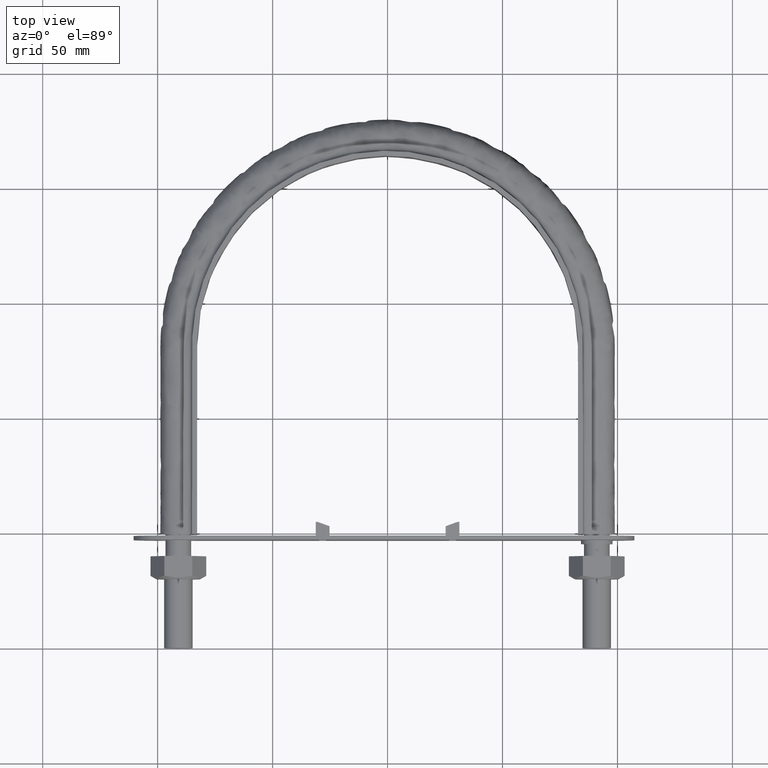
[diagram: clean part render]
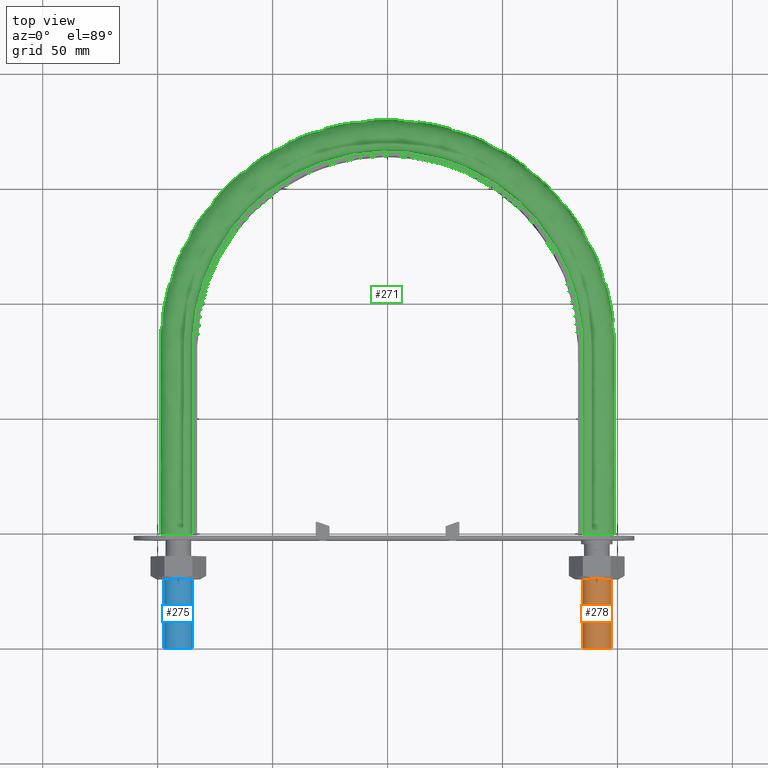
[diagram: same view with three faces highlighted in distinct colors, each labeled with its STEP entity id]
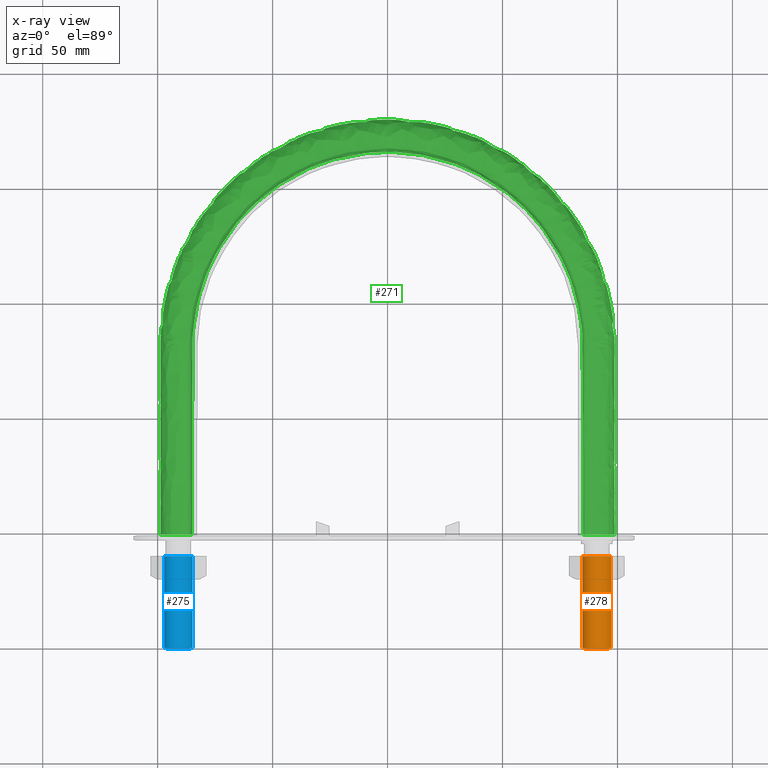
[diagram: x-ray of the same camera — body ghosted, the three highlighted faces saturated]
A machine part, top view with three faces highlighted in distinct colors.
The next image is the same camera in x-ray (body ghosted, the three faces saturated) — at least one of them is partly hidden behind the body in this view.
Their STEP definitions:

[orange] entity #278 — the highlighted cylindrical surface (bore or boss wall) has radius 6.25 mm, axis along (-0, -1, 0).
#278 = ADVANCED_FACE( '', ( #372, #373 ), #374, .T. );
#372 = FACE_OUTER_BOUND( '', #1454, .T. );
#373 = FACE_OUTER_BOUND( '', #1455, .T. );
#374 = CYLINDRICAL_SURFACE( '', #1456, 6.25000000000001 );
#1454 = EDGE_LOOP( '', ( #1711 ) );
#1455 = EDGE_LOOP( '', ( #1712 ) );
#1456 = AXIS2_PLACEMENT_3D( '', #1713, #1714, #1715 );
#1711 = ORIENTED_EDGE( '', *, *, #2201, .F. );
#1712 = ORIENTED_EDGE( '', *, *, #2202, .T. );
#1713 = CARTESIAN_POINT( '', ( 91.0000000000000, 40.0000000000000, -1.22460635382238E-014 ) );
#1714 = DIRECTION( '', ( -2.44921270764475E-016, -1.00000000000000, 3.06151588455594E-016 ) );
#1715 = DIRECTION( '', ( 1.00000000000000, -2.44921270764475E-016, 0.000000000000000 ) );
#2201 = EDGE_CURVE( '', #2395, #2395, #2396, .T. );
#2202 = EDGE_CURVE( '', #2397, #2397, #2398, .T. );
#2395 = VERTEX_POINT( '', #2879 );
#2396 = CIRCLE( '', #2880, 6.25000000000001 );
#2397 = VERTEX_POINT( '', #2881 );
#2398 = CIRCLE( '', #2882, 6.25000000000001 );
#2879 = CARTESIAN_POINT( '', ( 91.0000000000000, -1.57912352356619E-014, -6.25000000000001 ) );
#2880 = AXIS2_PLACEMENT_3D( '', #3345, #3346, #3347 );
#2881 = CARTESIAN_POINT( '', ( 91.0000000000000, 40.0000000000000, -6.25000000000002 ) );
#2882 = AXIS2_PLACEMENT_3D( '', #3348, #3349, #3350 );
#3345 = CARTESIAN_POINT( '', ( 91.0000000000000, -1.38777878078145E-014, -3.69778549322349E-029 ) );
#3346 = DIRECTION( '', ( -2.44921270764475E-016, -1.00000000000000, 3.06151588455594E-016 ) );
#3347 = DIRECTION( '', ( 0.000000000000000, -3.06151588455594E-016, -1.00000000000000 ) );
#3348 = CARTESIAN_POINT( '', ( 91.0000000000000, 40.0000000000000, -1.22460635382238E-014 ) );
#3349 = DIRECTION( '', ( -2.44921270764475E-016, -1.00000000000000, 3.06151588455594E-016 ) );
#3350 = DIRECTION( '', ( 0.000000000000000, -3.06151588455594E-016, -1.00000000000000 ) );

[blue] entity #275 — the highlighted cylindrical surface (bore or boss wall) has radius 6.25 mm, axis along (-0, -1, 0).
#275 = ADVANCED_FACE( '', ( #363, #364 ), #365, .T. );
#363 = FACE_OUTER_BOUND( '', #1259, .T. );
#364 = FACE_OUTER_BOUND( '', #1260, .T. );
#365 = CYLINDRICAL_SURFACE( '', #1261, 6.25000000000001 );
#1259 = EDGE_LOOP( '', ( #1678 ) );
#1260 = EDGE_LOOP( '', ( #1679 ) );
#1261 = AXIS2_PLACEMENT_3D( '', #1680, #1681, #1682 );
#1678 = ORIENTED_EDGE( '', *, *, #2190, .F. );
#1679 = ORIENTED_EDGE( '', *, *, #2191, .T. );
#1680 = CARTESIAN_POINT( '', ( -91.0000000000000, 40.0000000000000, -1.22460635382238E-014 ) );
#1681 = DIRECTION( '', ( -2.44921270764475E-016, -1.00000000000000, 3.06151588455594E-016 ) );
#1682 = DIRECTION( '', ( 1.00000000000000, -2.44921270764475E-016, 0.000000000000000 ) );
#2190 = EDGE_CURVE( '', #2373, #2373, #2374, .T. );
#2191 = EDGE_CURVE( '', #2375, #2375, #2376, .T. );
#2373 = VERTEX_POINT( '', #2833 );
#2374 = CIRCLE( '', #2834, 6.25000000000001 );
#2375 = VERTEX_POINT( '', #2835 );
#2376 = CIRCLE( '', #2836, 6.25000000000001 );
#2833 = CARTESIAN_POINT( '', ( -91.0000000000000, 1.19643403799670E-014, -6.25000000000001 ) );
#2834 = AXIS2_PLACEMENT_3D( '', #3336, #3337, #3338 );
#2835 = CARTESIAN_POINT( '', ( -91.0000000000000, 40.0000000000000, -6.25000000000002 ) );
#2836 = AXIS2_PLACEMENT_3D( '', #3339, #3340, #3341 );
#3336 = CARTESIAN_POINT( '', ( -91.0000000000000, 1.38777878078145E-014, -4.62223186652937E-029 ) );
#3337 = DIRECTION( '', ( -2.44921270764476E-016, -1.00000000000000, 3.06151588455594E-016 ) );
#3338 = DIRECTION( '', ( 0.000000000000000, -3.06151588455594E-016, -1.00000000000000 ) );
#3339 = CARTESIAN_POINT( '', ( -91.0000000000000, 40.0000000000000, -1.22460635382238E-014 ) );
#3340 = DIRECTION( '', ( -2.44921270764475E-016, -1.00000000000000, 3.06151588455594E-016 ) );
#3341 = DIRECTION( '', ( 0.000000000000000, -3.06151588455594E-016, -1.00000000000000 ) );

[green] entity #271 — the highlighted face is a freeform B-spline surface patch.
#271 = ADVANCED_FACE( '', ( #353 ), #354, .F. );
#353 = FACE_OUTER_BOUND( '', #537, .T. );
#354 = B_SPLINE_SURFACE_WITH_KNOTS( '', 3, 3, ( ( #538, #539, #540, #541, #542, #543, #544, #545, #546, #547, #548, #549, #550, #551, #552, #553, #554 ), ( #555, #556, #557, #558, #559, #560, #561, #562, #563, #564, #565, #566, #567, #568, #569, #570, #571 ), ( #572, #573, #574, #575, #576, #577, #578, #579, #580, #581, #582, #583, #584, #585, #586, #587, #588 ), ( #589, #590, #591, #592, #593, #594, #595, #596, #597, #598, #599, #600, #601, #602, #603, #604, #605 ), ( #606, #607, #608, #609, #610, #611, #612, #613, #614, #615, #616, #617, #618, #619, #620, #621, #622 ), ( #623, #624, #625, #626, #627, #628, #629, #630, #631, #632, #633, #634, #635, #636, #637, #638, #639 ), ( #640, #641, #642, #643, #644, #645, #646, #647, #648, #649, #650, #651, #652, #653, #654, #655, #656 ), ( #657, #658, #659, #660, #661, #662, #663, #664, #665, #666, #667, #668, #669, #670, #671, #672, #673 ), ( #674, #675, #676, #677, #678, #679, #680, #681, #682, #683, #684, #685, #686, #687, #688, #689, #690 ), ( #691, #692, #693, #694, #695, #696, #697, #698, #699, #700, #701, #702, #703, #704, #705, #706, #707 ), ( #708, #709, #710, #711, #712, #713, #714, #715, #716, #717, #718, #719, #720, #721, #722, #723, #724 ), ( #725, #726, #727, #728, #729, #730, #731, #732, #733, #734, #735, #736, #737, #738, #739, #740, #741 ), ( #742, #743, #744, #745, #746, #747, #748, #749, #750, #751, #752, #753, #754, #755, #756, #757, #758 ), ( #759, #760, #761, #762, #763, #764, #765, #766, #767, #768, #769, #770, #771, #772, #773, #774, #775 ), ( #776, #777, #778, #779, #780, #781, #782, #783, #784, #785, #786, #787, #788, #789, #790, #791, #792 ), ( #793, #794, #795, #796, #797, #798, #799, #800, #801, #802, #803, #804, #805, #806, #807, #808, #809 ), ( #810, #811, #812, #813, #814, #815, #816, #817, #818, #819, #820, #821, #822, #823, #824, #825, #826 ), ( #827, #828, #829, #830, #831, #832, #833, #834, #835, #836, #837, #838, #839, #840, #841, #842, #843 ), ( #844, #845, #846, #847, #848, #849, #850, #851, #852, #853, #854, #855, #856, #857, #858, #859, #860 ), ( #861, #862, #863, #864, #865, #866, #867, #868, #869, #870, #871, #872, #873, #874, #875, #876, #877 ), ( #878, #879, #880, #881, #882, #883, #884, #885, #886, #887, #888, #889, #890, #891, #892, #893, #894 ), ( #895, #896, #897, #898, #899, #900, #901, #902, #903, #904, #905, #906, #907, #908, #909, #910, #911 ), ( #912, #913, #914, #915, #916, #917, #918, #919, #920, #921, #922, #923, #924, #925, #926, #927, #928 ), ( #929, #930, #931, #932, #933, #934, #935, #936, #937, #938, #939, #940, #941, #942, #943, #944, #945 ), ( #946, #947, #948, #949, #950, #951, #952, #953, #954, #955, #956, #957, #958, #959, #960, #961, #962 ), ( #963, #964, #965, #966, #967, #968, #969, #970, #971, #972, #973, #974, #975, #976, #977, #978, #979 ), ( #980, #981, #982, #983, #984, #985, #986, #987, #988, #989, #990, #991, #992, #993, #994, #995, #996 ), ( #997, #998, #999, #1000, #1001, #1002, #1003, #1004, #1005, #1006, #1007, #1008, #1009, #1010, #1011, #1012, #1013 ), ( #1014, #1015, #1016, #1017, #1018, #1019, #1020, #1021, #1022, #1023, #1024, #1025, #1026, #1027, #1028, #1029, #1030 ), ( #1031, #1032, #1033, #1034, #1035, #1036, #1037, #1038, #1039, #1040, #1041, #1042, #1043, #1044, #1045, #1046, #1047 ), ( #1048, #1049, #1050, #1051, #1052, #1053, #1054, #1055, #1056, #1057, #1058, #1059, #1060, #1061, #1062, #1063, #1064 ) ), .UNSPECIFIED., .F., .F., .F., ( 4, 3, 1, 1, 1, 3, 3, 1, 1, 1, 3, 3, 1, 1, 1, 3, 4 ), ( 4, 3, 1, 1, 1, 1, 1, 1, 1, 3, 4 ), ( 0.105263157894737, 0.157894736842105, 0.210526315789474, 0.263157894736842, 0.315789473684211, 0.368421052631579, 0.421052631578947, 0.473684210526316, 0.526315789473684, 0.578947368421053, 0.631578947368421, 0.684210526315789, 0.736842105263158, 0.789473684210526, 0.842105263157895, 0.894736842105263, 0.947368421052632 ), ( 0.000000000000000, 1.00000000000000, 2.00000000000000, 3.00000000000000, 4.00000000000000, 5.00000000000000, 6.00000000000000, 7.00000000000000, 8.00000000000000, 9.00000000000000, 10.0000000000000 ), .UNSPECIFIED. );
#537 = EDGE_LOOP( '', ( #1653, #1654, #1655, #1656 ) );
#538 = CARTESIAN_POINT( '', ( 85.0500000000000, 49.5000000000000, -15.0000000000000 ) );
#539 = CARTESIAN_POINT( '', ( 85.0500000000000, 76.7166666666667, -15.0000000000000 ) );
#540 = CARTESIAN_POINT( '', ( 85.0500000000000, 103.933333333333, -15.0000000000000 ) );
#541 = CARTESIAN_POINT( '', ( 85.0500000000000, 131.150000000000, -15.0000000000000 ) );
#542 = CARTESIAN_POINT( '', ( 85.0500000000000, 142.271250144316, -15.0000000000000 ) );
#543 = CARTESIAN_POINT( '', ( 80.6216056780530, 164.549331025117, -15.0000000000000 ) );
#544 = CARTESIAN_POINT( '', ( 61.7051055673243, 192.853821731524, -15.0000000000000 ) );
#545 = CARTESIAN_POINT( '', ( 33.3945624921453, 211.771972488282, -15.0000000000000 ) );
#546 = CARTESIAN_POINT( '', ( 5.79721414685099E-014, 218.414013755859, -15.0000000000000 ) );
#547 = CARTESIAN_POINT( '', ( -33.3945624921452, 211.771972488282, -15.0000000000000 ) );
#548 = CARTESIAN_POINT( '', ( -61.7051055673243, 192.853821731524, -15.0000000000000 ) );
#549 = CARTESIAN_POINT( '', ( -80.6216056780529, 164.549331025117, -15.0000000000000 ) );
#550 = CARTESIAN_POINT( '', ( -85.0500000000000, 142.271250144316, -15.0000000000000 ) );
#551 = CARTESIAN_POINT( '', ( -85.0500000000000, 131.150000000000, -15.0000000000000 ) );
#552 = CARTESIAN_POINT( '', ( -85.0499999999999, 103.933333333333, -15.0000000000000 ) );
#553 = CARTESIAN_POINT( '', ( -85.0499999999999, 76.7166666666667, -15.0000000000000 ) );
#554 = CARTESIAN_POINT( '', ( -85.0500000000000, 49.5000000000001, -15.0000000000000 ) );
#555 = CARTESIAN_POINT( '', ( 85.0500000000000, 49.5000000000000, -13.2666666666667 ) );
#556 = CARTESIAN_POINT( '', ( 85.0500000000000, 76.7166666666667, -13.2666666666667 ) );
#557 = CARTESIAN_POINT( '', ( 85.0500000000000, 103.933333333333, -13.2666666666667 ) );
#558 = CARTESIAN_POINT( '', ( 85.0500000000000, 131.150000000000, -13.2666666666667 ) );
#559 = CARTESIAN_POINT( '', ( 85.0500000000000, 142.271250144316, -13.2666666666667 ) );
#560 = CARTESIAN_POINT( '', ( 80.6216056780530, 164.549331025117, -13.2666666666667 ) );
#561 = CARTESIAN_POINT( '', ( 61.7051055673243, 192.853821731524, -13.2666666666667 ) );
#562 = CARTESIAN_POINT( '', ( 33.3945624921453, 211.771972488282, -13.2666666666667 ) );
#563 = CARTESIAN_POINT( '', ( 5.79721414685099E-014, 218.414013755859, -13.2666666666667 ) );
#564 = CARTESIAN_POINT( '', ( -33.3945624921452, 211.771972488282, -13.2666666666667 ) );
#565 = CARTESIAN_POINT( '', ( -61.7051055673243, 192.853821731524, -13.2666666666667 ) );
#566 = CARTESIAN_POINT( '', ( -80.6216056780529, 164.549331025117, -13.2666666666667 ) );
#567 = CARTESIAN_POINT( '', ( -85.0500000000000, 142.271250144316, -13.2666666666667 ) );
#568 = CARTESIAN_POINT( '', ( -85.0500000000000, 131.150000000000, -13.2666666666667 ) );
#569 = CARTESIAN_POINT( '', ( -85.0499999999999, 103.933333333333, -13.2666666666667 ) );
#570 = CARTESIAN_POINT( '', ( -85.0499999999999, 76.7166666666667, -13.2666666666667 ) );
#571 = CARTESIAN_POINT( '', ( -85.0500000000000, 49.5000000000001, -13.2666666666667 ) );
#572 = CARTESIAN_POINT( '', ( 85.0500000000000, 49.5000000000000, -11.5333333333333 ) );
#573 = CARTESIAN_POINT( '', ( 85.0500000000000, 76.7166666666667, -11.5333333333333 ) );
#574 = CARTESIAN_POINT( '', ( 85.0500000000000, 103.933333333333, -11.5333333333333 ) );
#575 = CARTESIAN_POINT( '', ( 85.0500000000000, 131.150000000000, -11.5333333333333 ) );
#576 = CARTESIAN_POINT( '', ( 85.0500000000000, 142.271250144316, -11.5333333333333 ) );
#577 = CARTESIAN_POINT( '', ( 80.6216056780530, 164.549331025117, -11.5333333333333 ) );
#578 = CARTESIAN_POINT( '', ( 61.7051055673243, 192.853821731524, -11.5333333333333 ) );
#579 = CARTESIAN_POINT( '', ( 33.3945624921453, 211.771972488282, -11.5333333333333 ) );
#580 = CARTESIAN_POINT( '', ( 5.79721414685099E-014, 218.414013755859, -11.5333333333333 ) );
#581 = CARTESIAN_POINT( '', ( -33.3945624921452, 211.771972488282, -11.5333333333333 ) );
#582 = CARTESIAN_POINT( '', ( -61.7051055673243, 192.853821731524, -11.5333333333333 ) );
#583 = CARTESIAN_POINT( '', ( -80.6216056780529, 164.549331025117, -11.5333333333333 ) );
#584 = CARTESIAN_POINT( '', ( -85.0500000000000, 142.271250144316, -11.5333333333333 ) );
#585 = CARTESIAN_POINT( '', ( -85.0500000000000, 131.150000000000, -11.5333333333333 ) );
#586 = CARTESIAN_POINT( '', ( -85.0499999999999, 103.933333333333, -11.5333333333333 ) );
#587 = CARTESIAN_POINT( '', ( -85.0499999999999, 76.7166666666667, -11.5333333333333 ) );
#588 = CARTESIAN_POINT( '', ( -85.0500000000000, 49.5000000000001, -11.5333333333333 ) );
#589 = CARTESIAN_POINT( '', ( 85.0500000000000, 49.5000000000000, -9.79999999999998 ) );
#590 = CARTESIAN_POINT( '', ( 85.0500000000000, 76.7166666666667, -9.79999999999998 ) );
#591 = CARTESIAN_POINT( '', ( 85.0500000000000, 103.933333333333, -9.79999999999999 ) );
#592 = CARTESIAN_POINT( '', ( 85.0500000000000, 131.150000000000, -9.79999999999999 ) );
#593 = CARTESIAN_POINT( '', ( 85.0500000000000, 142.271250144316, -9.79999999999999 ) );
#594 = CARTESIAN_POINT( '', ( 80.6216056780530, 164.549331025117, -9.80000000000000 ) );
#595 = CARTESIAN_POINT( '', ( 61.7051055673243, 192.853821731524, -9.79999999999998 ) );
#596 = CARTESIAN_POINT( '', ( 33.3945624921453, 211.771972488282, -9.80000000000000 ) );
#597 = CARTESIAN_POINT( '', ( 5.79721414685099E-014, 218.414013755859, -9.79999999999998 ) );
#598 = CARTESIAN_POINT( '', ( -33.3945624921452, 211.771972488282, -9.80000000000000 ) );
#599 = CARTESIAN_POINT( '', ( -61.7051055673243, 192.853821731524, -9.79999999999998 ) );
#600 = CARTESIAN_POINT( '', ( -80.6216056780529, 164.549331025117, -9.80000000000000 ) );
#601 = CARTESIAN_POINT( '', ( -85.0500000000000, 142.271250144316, -9.79999999999999 ) );
#602 = CARTESIAN_POINT( '', ( -85.0500000000000, 131.150000000000, -9.79999999999999 ) );
#603 = CARTESIAN_POINT( '', ( -85.0499999999999, 103.933333333333, -9.79999999999999 ) );
#604 = CARTESIAN_POINT( '', ( -85.0499999999999, 76.7166666666667, -9.79999999999999 ) );
#605 = CARTESIAN_POINT( '', ( -85.0500000000000, 49.5000000000001, -9.79999999999999 ) );
#606 = CARTESIAN_POINT( '', ( 85.0500000000000, 49.5000000000000, -9.53823584172332 ) );
#607 = CARTESIAN_POINT( '', ( 85.0500000000000, 76.7166666666667, -9.53823584172332 ) );
#608 = CARTESIAN_POINT( '', ( 85.0500000000000, 103.933333333333, -9.53823584172332 ) );
#609 = CARTESIAN_POINT( '', ( 85.0500000000000, 131.150000000000, -9.53823584172332 ) );
#610 = CARTESIAN_POINT( '', ( 85.0500000000000, 142.271250144316, -9.53823584172332 ) );
#611 = CARTESIAN_POINT( '', ( 80.6216056780530, 164.549331025117, -9.53823584172333 ) );
#612 = CARTESIAN_POINT( '', ( 61.7051055673243, 192.853821731524, -9.53823584172332 ) );
#613 = CARTESIAN_POINT( '', ( 33.3945624921453, 211.771972488282, -9.53823584172333 ) );
#614 = CARTESIAN_POINT( '', ( 5.79721414685099E-014, 218.414013755859, -9.53823584172332 ) );
#615 = CARTESIAN_POINT( '', ( -33.3945624921452, 211.771972488282, -9.53823584172333 ) );
#616 = CARTESIAN_POINT( '', ( -61.7051055673243, 192.853821731524, -9.53823584172332 ) );
#617 = CARTESIAN_POINT( '', ( -80.6216056780529, 164.549331025117, -9.53823584172333 ) );
#618 = CARTESIAN_POINT( '', ( -85.0500000000000, 142.271250144316, -9.53823584172332 ) );
#619 = CARTESIAN_POINT( '', ( -85.0500000000000, 131.150000000000, -9.53823584172332 ) );
#620 = CARTESIAN_POINT( '', ( -85.0499999999999, 103.933333333333, -9.53823584172332 ) );
#621 = CARTESIAN_POINT( '', ( -85.0499999999999, 76.7166666666667, -9.53823584172332 ) );
#622 = CARTESIAN_POINT( '', ( -85.0500000000000, 49.5000000000001, -9.53823584172332 ) );
#623 = CARTESIAN_POINT( '', ( 85.1541362568359, 49.5000000000000, -9.01470752516999 ) );
#624 = CARTESIAN_POINT( '', ( 85.1541362568359, 76.7166666666667, -9.01470752516999 ) );
#625 = CARTESIAN_POINT( '', ( 85.1541362568359, 103.933333333333, -9.01470752517000 ) );
#626 = CARTESIAN_POINT( '', ( 85.1541362568359, 131.150000000000, -9.01470752517000 ) );
#627 = CARTESIAN_POINT( '', ( 85.1541362568359, 142.285059470567, -9.01470752517000 ) );
#628 = CARTESIAN_POINT( '', ( 80.7203197548950, 164.590136276193, -9.01470752517000 ) );
#629 = CARTESIAN_POINT( '', ( 61.7806580508216, 192.929396684577, -9.01470752516999 ) );
#630 = CARTESIAN_POINT( '', ( 33.4354512015704, 211.870680145251, -9.01470752517000 ) );
#631 = CARTESIAN_POINT( '', ( 5.79852264555828E-014, 218.520864312629, -9.01470752516999 ) );
#632 = CARTESIAN_POINT( '', ( -33.4354512015703, 211.870680145251, -9.01470752517001 ) );
#633 = CARTESIAN_POINT( '', ( -61.7806580508216, 192.929396684577, -9.01470752516999 ) );
#634 = CARTESIAN_POINT( '', ( -80.7203197548949, 164.590136276193, -9.01470752517001 ) );
#635 = CARTESIAN_POINT( '', ( -85.1541362568359, 142.285059470567, -9.01470752517000 ) );
#636 = CARTESIAN_POINT( '', ( -85.1541362568359, 131.150000000000, -9.01470752517000 ) );
#637 = CARTESIAN_POINT( '', ( -85.1541362568359, 103.933333333333, -9.01470752517000 ) );
#638 = CARTESIAN_POINT( '', ( -85.1541362568359, 76.7166666666667, -9.01470752517000 ) );
#639 = CARTESIAN_POINT( '', ( -85.1541362568359, 49.5000000000001, -9.01470752517000 ) );
#640 = CARTESIAN_POINT( '', ( 85.5989687109389, 49.5000000000000, -8.34896871093886 ) );
#641 = CARTESIAN_POINT( '', ( 85.5989687109389, 76.7166666666667, -8.34896871093886 ) );
#642 = CARTESIAN_POINT( '', ( 85.5989687109389, 103.933333333333, -8.34896871093886 ) );
#643 = CARTESIAN_POINT( '', ( 85.5989687109389, 131.150000000000, -8.34896871093886 ) );
#644 = CARTESIAN_POINT( '', ( 85.5989687109389, 142.344047921589, -8.34896871093886 ) );
#645 = CARTESIAN_POINT( '', ( 81.1419906156532, 164.764441561673, -8.34896871093887 ) );
#646 = CARTESIAN_POINT( '', ( 62.1033909554682, 193.252225571044, -8.34896871093886 ) );
#647 = CARTESIAN_POINT( '', ( 33.6101129909540, 212.292323582632, -8.34896871093887 ) );
#648 = CARTESIAN_POINT( '', ( 5.63063973154349E-014, 218.977291275092, -8.34896871093886 ) );
#649 = CARTESIAN_POINT( '', ( -33.6101129909539, 212.292323582632, -8.34896871093887 ) );
#650 = CARTESIAN_POINT( '', ( -62.1033909554682, 193.252225571044, -8.34896871093886 ) );
#651 = CARTESIAN_POINT( '', ( -81.1419906156532, 164.764441561673, -8.34896871093887 ) );
#652 = CARTESIAN_POINT( '', ( -85.5989687109388, 142.344047921589, -8.34896871093886 ) );
#653 = CARTESIAN_POINT( '', ( -85.5989687109388, 131.150000000000, -8.34896871093886 ) );
#654 = CARTESIAN_POINT( '', ( -85.5989687109388, 103.933333333333, -8.34896871093886 ) );
#655 = CARTESIAN_POINT( '', ( -85.5989687109388, 76.7166666666667, -8.34896871093886 ) );
#656 = CARTESIAN_POINT( '', ( -85.5989687109388, 49.5000000000001, -8.34896871093886 ) );
#657 = CARTESIAN_POINT( '', ( 86.2647075251700, 49.5000000000000, -7.90413625683589 ) );
#658 = CARTESIAN_POINT( '', ( 86.2647075251700, 76.7166666666667, -7.90413625683589 ) );
#659 = CARTESIAN_POINT( '', ( 86.2647075251700, 103.933333333333, -7.90413625683590 ) );
#660 = CARTESIAN_POINT( '', ( 86.2647075251700, 131.150000000000, -7.90413625683590 ) );
#661 = CARTESIAN_POINT( '', ( 86.2647075251700, 142.432330377319, -7.90413625683590 ) );
#662 = CARTESIAN_POINT( '', ( 81.7730656558122, 165.025307856386, -7.90413625683590 ) );
#663 = CARTESIAN_POINT( '', ( 62.5863948803642, 193.735373142885, -7.90413625683589 ) );
#664 = CARTESIAN_POINT( '', ( 33.8715128314630, 212.923357580806, -7.90413625683590 ) );
#665 = CARTESIAN_POINT( '', ( 5.46553256245600E-014, 219.660382497352, -7.90413625683589 ) );
#666 = CARTESIAN_POINT( '', ( -33.8715128314629, 212.923357580806, -7.90413625683591 ) );
#667 = CARTESIAN_POINT( '', ( -62.5863948803641, 193.735373142885, -7.90413625683589 ) );
#668 = CARTESIAN_POINT( '', ( -81.7730656558121, 165.025307856386, -7.90413625683591 ) );
#669 = CARTESIAN_POINT( '', ( -86.2647075251700, 142.432330377319, -7.90413625683590 ) );
#670 = CARTESIAN_POINT( '', ( -86.2647075251700, 131.150000000000, -7.90413625683590 ) );
#671 = CARTESIAN_POINT( '', ( -86.2647075251700, 103.933333333333, -7.90413625683590 ) );
#672 = CARTESIAN_POINT( '', ( -86.2647075251700, 76.7166666666667, -7.90413625683590 ) );
#673 = CARTESIAN_POINT( '', ( -86.2647075251700, 49.5000000000001, -7.90413625683590 ) );
#674 = CARTESIAN_POINT( '', ( 86.7882358417233, 49.5000000000000, -7.79999999999998 ) );
#675 = CARTESIAN_POINT( '', ( 86.7882358417233, 76.7166666666667, -7.79999999999998 ) );
#676 = CARTESIAN_POINT( '', ( 86.7882358417233, 103.933333333333, -7.79999999999999 ) );
#677 = CARTESIAN_POINT( '', ( 86.7882358417233, 131.150000000000, -7.79999999999999 ) );
#678 = CARTESIAN_POINT( '', ( 86.7882358417233, 142.501754548543, -7.79999999999999 ) );
#679 = CARTESIAN_POINT( '', ( 82.2693348327487, 165.230449706609, -7.79999999999999 ) );
#680 = CARTESIAN_POINT( '', ( 62.9662228643784, 194.115314088982, -7.79999999999998 ) );
#681 = CARTESIAN_POINT( '', ( 34.0770742551378, 213.419594482862, -7.79999999999999 ) );
#682 = CARTESIAN_POINT( '', ( 5.64558317728024E-014, 220.197556521154, -7.79999999999998 ) );
#683 = CARTESIAN_POINT( '', ( -34.0770742551378, 213.419594482862, -7.79999999999999 ) );
#684 = CARTESIAN_POINT( '', ( -62.9662228643783, 194.115314088982, -7.79999999999998 ) );
#685 = CARTESIAN_POINT( '', ( -82.2693348327487, 165.230449706609, -7.80000000000000 ) );
#686 = CARTESIAN_POINT( '', ( -86.7882358417233, 142.501754548543, -7.79999999999999 ) );
#687 = CARTESIAN_POINT( '', ( -86.7882358417233, 131.150000000000, -7.79999999999999 ) );
#688 = CARTESIAN_POINT( '', ( -86.7882358417233, 103.933333333333, -7.79999999999999 ) );
#689 = CARTESIAN_POINT( '', ( -86.7882358417233, 76.7166666666667, -7.79999999999999 ) );
#690 = CARTESIAN_POINT( '', ( -86.7882358417233, 49.5000000000001, -7.79999999999999 ) );
#691 = CARTESIAN_POINT( '', ( 87.0500000000000, 49.5000000000000, -7.79999999999998 ) );
#692 = CARTESIAN_POINT( '', ( 87.0500000000000, 76.7166666666667, -7.79999999999998 ) );
#693 = CARTESIAN_POINT( '', ( 87.0500000000000, 103.933333333333, -7.79999999999999 ) );
#694 = CARTESIAN_POINT( '', ( 87.0500000000000, 131.150000000000, -7.79999999999999 ) );
#695 = CARTESIAN_POINT( '', ( 87.0500000000000, 142.536466634155, -7.79999999999999 ) );
#696 = CARTESIAN_POINT( '', ( 82.5174694212171, 165.333020631721, -7.79999999999999 ) );
#697 = CARTESIAN_POINT( '', ( 63.1561368563854, 194.305284562031, -7.79999999999998 ) );
#698 = CARTESIAN_POINT( '', ( 34.1798549669753, 213.667712933890, -7.79999999999999 ) );
#699 = CARTESIAN_POINT( '', ( 5.64887231089353E-014, 220.466143533055, -7.79999999999998 ) );
#700 = CARTESIAN_POINT( '', ( -34.1798549669752, 213.667712933890, -7.79999999999999 ) );
#701 = CARTESIAN_POINT( '', ( -63.1561368563854, 194.305284562031, -7.79999999999998 ) );
#702 = CARTESIAN_POINT( '', ( -82.5174694212170, 165.333020631721, -7.80000000000000 ) );
#703 = CARTESIAN_POINT( '', ( -87.0500000000000, 142.536466634155, -7.79999999999999 ) );
#704 = CARTESIAN_POINT( '', ( -87.0500000000000, 131.150000000000, -7.79999999999999 ) );
#705 = CARTESIAN_POINT( '', ( -87.0499999999999, 103.933333333333, -7.79999999999999 ) );
#706 = CARTESIAN_POINT( '', ( -87.0499999999999, 76.7166666666667, -7.79999999999999 ) );
#707 = CARTESIAN_POINT( '', ( -87.0500000000000, 49.5000000000001, -7.79999999999999 ) );
#708 = CARTESIAN_POINT( '', ( 88.3666666666667, 49.5000000000000, -7.79999999999999 ) );
#709 = CARTESIAN_POINT( '', ( 88.3666666666667, 76.7166666666667, -7.79999999999999 ) );
#710 = CARTESIAN_POINT( '', ( 88.3666666666667, 103.933333333333, -7.79999999999999 ) );
#711 = CARTESIAN_POINT( '', ( 88.3666666666667, 131.150000000000, -7.79999999999999 ) );
#712 = CARTESIAN_POINT( '', ( 88.3666666666667, 142.711067489966, -7.79999999999999 ) );
#713 = CARTESIAN_POINT( '', ( 83.7655797188001, 165.848949622735, -7.80000000000000 ) );
#714 = CARTESIAN_POINT( '', ( 64.1113991216840, 195.260830925448, -7.79999999999999 ) );
#715 = CARTESIAN_POINT( '', ( 34.6968391795717, 214.915742060582, -7.80000000000000 ) );
#716 = CARTESIAN_POINT( '', ( 6.01236125958537E-014, 221.817128969709, -7.79999999999999 ) );
#717 = CARTESIAN_POINT( '', ( -34.6968391795716, 214.915742060582, -7.80000000000000 ) );
#718 = CARTESIAN_POINT( '', ( -64.1113991216840, 195.260830925448, -7.79999999999998 ) );
#719 = CARTESIAN_POINT( '', ( -83.7655797188001, 165.848949622735, -7.80000000000000 ) );
#720 = CARTESIAN_POINT( '', ( -88.3666666666666, 142.711067489966, -7.79999999999999 ) );
#721 = CARTESIAN_POINT( '', ( -88.3666666666666, 131.150000000000, -7.79999999999999 ) );
#722 = CARTESIAN_POINT( '', ( -88.3666666666666, 103.933333333333, -7.79999999999999 ) );
#723 = CARTESIAN_POINT( '', ( -88.3666666666666, 76.7166666666667, -7.79999999999999 ) );
#724 = CARTESIAN_POINT( '', ( -88.3666666666666, 49.5000000000001, -7.79999999999999 ) );
#725 = CARTESIAN_POINT( '', ( 89.6833333333333, 49.5000000000000, -7.79999999999999 ) );
#726 = CARTESIAN_POINT( '', ( 89.6833333333333, 76.7166666666667, -7.79999999999999 ) );
#727 = CARTESIAN_POINT( '', ( 89.6833333333333, 103.933333333333, -7.79999999999999 ) );
#728 = CARTESIAN_POINT( '', ( 89.6833333333333, 131.150000000000, -7.79999999999999 ) );
#729 = CARTESIAN_POINT( '', ( 89.6833333333333, 142.885668345777, -7.79999999999999 ) );
#730 = CARTESIAN_POINT( '', ( 85.0136900163831, 166.364878613750, -7.80000000000000 ) );
#731 = CARTESIAN_POINT( '', ( 65.0666613869826, 196.216377288864, -7.79999999999999 ) );
#732 = CARTESIAN_POINT( '', ( 35.2138233921681, 216.163771187274, -7.80000000000000 ) );
#733 = CARTESIAN_POINT( '', ( 5.68196081788649E-014, 223.168114406363, -7.79999999999999 ) );
#734 = CARTESIAN_POINT( '', ( -35.2138233921680, 216.163771187274, -7.80000000000000 ) );
#735 = CARTESIAN_POINT( '', ( -65.0666613869825, 196.216377288864, -7.79999999999998 ) );
#736 = CARTESIAN_POINT( '', ( -85.0136900163831, 166.364878613750, -7.80000000000000 ) );
#737 = CARTESIAN_POINT( '', ( -89.6833333333333, 142.885668345777, -7.79999999999999 ) );
#738 = CARTESIAN_POINT( '', ( -89.6833333333333, 131.150000000000, -7.79999999999999 ) );
#739 = CARTESIAN_POINT( '', ( -89.6833333333333, 103.933333333333, -7.79999999999999 ) );
#740 = CARTESIAN_POINT( '', ( -89.6833333333333, 76.7166666666667, -7.79999999999999 ) );
#741 = CARTESIAN_POINT( '', ( -89.6833333333333, 49.5000000000001, -7.79999999999999 ) );
#742 = CARTESIAN_POINT( '', ( 91.0000000000000, 49.5000000000000, -7.79999999999999 ) );
#743 = CARTESIAN_POINT( '', ( 91.0000000000000, 76.7166666666667, -7.79999999999999 ) );
#744 = CARTESIAN_POINT( '', ( 91.0000000000000, 103.933333333333, -7.79999999999999 ) );
#745 = CARTESIAN_POINT( '', ( 91.0000000000000, 131.150000000000, -7.79999999999999 ) );
#746 = CARTESIAN_POINT( '', ( 91.0000000000000, 143.060269201588, -7.79999999999999 ) );
#747 = CARTESIAN_POINT( '', ( 86.2618003139661, 166.880807604765, -7.80000000000000 ) );
#748 = CARTESIAN_POINT( '', ( 66.0219236522812, 197.171923652281, -7.79999999999999 ) );
#749 = CARTESIAN_POINT( '', ( 35.7308076047645, 217.411800313966, -7.80000000000000 ) );
#750 = CARTESIAN_POINT( '', ( 6.04544976657833E-014, 224.519099843017, -7.79999999999999 ) );
#751 = CARTESIAN_POINT( '', ( -35.7308076047645, 217.411800313966, -7.80000000000000 ) );
#752 = CARTESIAN_POINT( '', ( -66.0219236522811, 197.171923652281, -7.79999999999998 ) );
#753 = CARTESIAN_POINT( '', ( -86.2618003139661, 166.880807604765, -7.80000000000000 ) );
#754 = CARTESIAN_POINT( '', ( -91.0000000000000, 143.060269201588, -7.79999999999999 ) );
#755 = CARTESIAN_POINT( '', ( -91.0000000000000, 131.150000000000, -7.79999999999999 ) );
#756 = CARTESIAN_POINT( '', ( -91.0000000000000, 103.933333333333, -7.79999999999999 ) );
#757 = CARTESIAN_POINT( '', ( -91.0000000000000, 76.7166666666667, -7.79999999999999 ) );
#758 = CARTESIAN_POINT( '', ( -91.0000000000000, 49.5000000000001, -7.79999999999999 ) );
#759 = CARTESIAN_POINT( '', ( 93.0373902247172, 49.5000000000000, -7.79999999999998 ) );
#760 = CARTESIAN_POINT( '', ( 93.0373902247172, 76.7166666666667, -7.79999999999998 ) );
#761 = CARTESIAN_POINT( '', ( 93.0373902247172, 103.933333333333, -7.79999999999999 ) );
#762 = CARTESIAN_POINT( '', ( 93.0373902247172, 131.150000000000, -7.79999999999999 ) );
#763 = CARTESIAN_POINT( '', ( 93.0373902247172, 143.330443943505, -7.79999999999999 ) );
#764 = CARTESIAN_POINT( '', ( 88.1931074428253, 167.679148376619, -7.79999999999999 ) );
#765 = CARTESIAN_POINT( '', ( 67.5000821343271, 198.650521743488, -7.79999999999998 ) );
#766 = CARTESIAN_POINT( '', ( 36.5307812106458, 219.342981840208, -7.79999999999999 ) );
#767 = CARTESIAN_POINT( '', ( 5.89757774835961E-014, 226.609594416972, -7.79999999999998 ) );
#768 = CARTESIAN_POINT( '', ( -36.5307812106457, 219.342981840208, -7.79999999999999 ) );
#769 = CARTESIAN_POINT( '', ( -67.5000821343271, 198.650521743488, -7.79999999999998 ) );
#770 = CARTESIAN_POINT( '', ( -88.1931074428252, 167.679148376619, -7.80000000000000 ) );
#771 = CARTESIAN_POINT( '', ( -93.0373902247171, 143.330443943505, -7.79999999999999 ) );
#772 = CARTESIAN_POINT( '', ( -93.0373902247171, 131.150000000000, -7.79999999999999 ) );
#773 = CARTESIAN_POINT( '', ( -93.0373902247171, 103.933333333333, -7.79999999999999 ) );
#774 = CARTESIAN_POINT( '', ( -93.0373902247171, 76.7166666666667, -7.79999999999999 ) );
#775 = CARTESIAN_POINT( '', ( -93.0373902247171, 49.5000000000001, -7.79999999999999 ) );
#776 = CARTESIAN_POINT( '', ( 97.1121706741515, 49.5000000000000, -6.11217067415154 ) );
#777 = CARTESIAN_POINT( '', ( 97.1121706741516, 76.7166666666667, -6.11217067415154 ) );
#778 = CARTESIAN_POINT( '', ( 97.1121706741516, 103.933333333333, -6.11217067415154 ) );
#779 = CARTESIAN_POINT( '', ( 97.1121706741516, 131.150000000000, -6.11217067415154 ) );
#780 = CARTESIAN_POINT( '', ( 97.1121706741516, 143.870793427338, -6.11217067415154 ) );
#781 = CARTESIAN_POINT( '', ( 92.0557217005435, 169.275829920327, -6.11217067415155 ) );
#782 = CARTESIAN_POINT( '', ( 70.4563990984190, 201.607717925902, -6.11217067415154 ) );
#783 = CARTESIAN_POINT( '', ( 38.1307284224084, 223.205344892691, -6.11217067415155 ) );
#784 = CARTESIAN_POINT( '', ( 5.94877840711754E-014, 230.790583564882, -6.11217067415154 ) );
#785 = CARTESIAN_POINT( '', ( -38.1307284224083, 223.205344892691, -6.11217067415155 ) );
#786 = CARTESIAN_POINT( '', ( -70.4563990984190, 201.607717925902, -6.11217067415153 ) );
#787 = CARTESIAN_POINT( '', ( -92.0557217005435, 169.275829920327, -6.11217067415155 ) );
#788 = CARTESIAN_POINT( '', ( -97.1121706741515, 143.870793427338, -6.11217067415154 ) );
#789 = CARTESIAN_POINT( '', ( -97.1121706741515, 131.150000000000, -6.11217067415154 ) );
#790 = CARTESIAN_POINT( '', ( -97.1121706741515, 103.933333333333, -6.11217067415154 ) );
#791 = CARTESIAN_POINT( '', ( -97.1121706741515, 76.7166666666667, -6.11217067415154 ) );
#792 = CARTESIAN_POINT( '', ( -97.1121706741515, 49.5000000000001, -6.11217067415154 ) );
#793 = CARTESIAN_POINT( '', ( 99.6439146629242, 49.5000000000000, -2.58929722408949E-015 ) );
#794 = CARTESIAN_POINT( '', ( 99.6439146629242, 76.7166666666667, -2.58929722408949E-015 ) );
#795 = CARTESIAN_POINT( '', ( 99.6439146629242, 103.933333333333, -2.58929722408950E-015 ) );
#796 = CARTESIAN_POINT( '', ( 99.6439146629242, 131.150000000000, -2.58929722408950E-015 ) );
#797 = CARTESIAN_POINT( '', ( 99.6439146629242, 144.206523554275, -2.58929722408950E-015 ) );
#798 = CARTESIAN_POINT( '', ( 94.4556425181874, 170.267880645619, -2.58929722408950E-015 ) );
#799 = CARTESIAN_POINT( '', ( 72.2932189702198, 203.445084073933, -2.58929722408949E-015 ) );
#800 = CARTESIAN_POINT( '', ( 39.1248081736980, 225.605109631412, -2.58929722408950E-015 ) );
#801 = CARTESIAN_POINT( '', ( 5.98059041800750E-014, 233.388317178680, -2.58929722408949E-015 ) );
#802 = CARTESIAN_POINT( '', ( -39.1248081736980, 225.605109631412, -2.58929722408950E-015 ) );
#803 = CARTESIAN_POINT( '', ( -72.2932189702197, 203.445084073933, -2.58929722408949E-015 ) );
#804 = CARTESIAN_POINT( '', ( -94.4556425181873, 170.267880645619, -2.58929722408950E-015 ) );
#805 = CARTESIAN_POINT( '', ( -99.6439146629242, 144.206523554275, -2.58929722408950E-015 ) );
#806 = CARTESIAN_POINT( '', ( -99.6439146629242, 131.150000000000, -2.58929722408950E-015 ) );
#807 = CARTESIAN_POINT( '', ( -99.6439146629242, 103.933333333333, -2.58929722408950E-015 ) );
#808 = CARTESIAN_POINT( '', ( -99.6439146629242, 76.7166666666667, -2.58929722408950E-015 ) );
#809 = CARTESIAN_POINT( '', ( -99.6439146629242, 49.5000000000001, -2.58929722408950E-015 ) );
#810 = CARTESIAN_POINT( '', ( 97.1121706741515, 49.5000000000000, 6.11217067415153 ) );
#811 = CARTESIAN_POINT( '', ( 97.1121706741516, 76.7166666666667, 6.11217067415153 ) );
#812 = CARTESIAN_POINT( '', ( 97.1121706741516, 103.933333333333, 6.11217067415154 ) );
#813 = CARTESIAN_POINT( '', ( 97.1121706741516, 131.150000000000, 6.11217067415154 ) );
#814 = CARTESIAN_POINT( '', ( 97.1121706741516, 143.870793427338, 6.11217067415154 ) );
#815 = CARTESIAN_POINT( '', ( 92.0557217005435, 169.275829920327, 6.11217067415154 ) );
#816 = CARTESIAN_POINT( '', ( 70.4563990984190, 201.607717925902, 6.11217067415153 ) );
#817 = CARTESIAN_POINT( '', ( 38.1307284224084, 223.205344892691, 6.11217067415154 ) );
#818 = CARTESIAN_POINT( '', ( 5.94877840711754E-014, 230.790583564882, 6.11217067415153 ) );
#819 = CARTESIAN_POINT( '', ( -38.1307284224083, 223.205344892691, 6.11217067415154 ) );
#820 = CARTESIAN_POINT( '', ( -70.4563990984190, 201.607717925902, 6.11217067415153 ) );
#821 = CARTESIAN_POINT( '', ( -92.0557217005435, 169.275829920327, 6.11217067415154 ) );
#822 = CARTESIAN_POINT( '', ( -97.1121706741515, 143.870793427338, 6.11217067415154 ) );
#823 = CARTESIAN_POINT( '', ( -97.1121706741515, 131.150000000000, 6.11217067415154 ) );
#824 = CARTESIAN_POINT( '', ( -97.1121706741515, 103.933333333333, 6.11217067415154 ) );
#825 = CARTESIAN_POINT( '', ( -97.1121706741515, 76.7166666666667, 6.11217067415154 ) );
#826 = CARTESIAN_POINT( '', ( -97.1121706741515, 49.5000000000001, 6.11217067415154 ) );
#827 = CARTESIAN_POINT( '', ( 93.0373902247172, 49.5000000000000, 7.79999999999998 ) );
#828 = CARTESIAN_POINT( '', ( 93.0373902247172, 76.7166666666667, 7.79999999999998 ) );
#829 = CARTESIAN_POINT( '', ( 93.0373902247172, 103.933333333333, 7.79999999999998 ) );
#830 = CARTESIAN_POINT( '', ( 93.0373902247172, 131.150000000000, 7.79999999999998 ) );
#831 = CARTESIAN_POINT( '', ( 93.0373902247172, 143.330443943505, 7.79999999999998 ) );
#832 = CARTESIAN_POINT( '', ( 88.1931074428253, 167.679148376619, 7.79999999999999 ) );
#833 = CARTESIAN_POINT( '', ( 67.5000821343271, 198.650521743488, 7.79999999999998 ) );
#834 = CARTESIAN_POINT( '', ( 36.5307812106458, 219.342981840208, 7.79999999999999 ) );
#835 = CARTESIAN_POINT( '', ( 5.89757774835961E-014, 226.609594416972, 7.79999999999998 ) );
#836 = CARTESIAN_POINT( '', ( -36.5307812106457, 219.342981840208, 7.79999999999999 ) );
#837 = CARTESIAN_POINT( '', ( -67.5000821343271, 198.650521743488, 7.79999999999997 ) );
#838 = CARTESIAN_POINT( '', ( -88.1931074428252, 167.679148376619, 7.79999999999999 ) );
#839 = CARTESIAN_POINT( '', ( -93.0373902247171, 143.330443943505, 7.79999999999998 ) );
#840 = CARTESIAN_POINT( '', ( -93.0373902247171, 131.150000000000, 7.79999999999998 ) );
#841 = CARTESIAN_POINT( '', ( -93.0373902247171, 103.933333333333, 7.79999999999998 ) );
#842 = CARTESIAN_POINT( '', ( -93.0373902247171, 76.7166666666667, 7.79999999999998 ) );
#843 = CARTESIAN_POINT( '', ( -93.0373902247171, 49.5000000000001, 7.79999999999998 ) );
#844 = CARTESIAN_POINT( '', ( 91.0000000000000, 49.5000000000000, 7.79999999999998 ) );
#845 = CARTESIAN_POINT( '', ( 91.0000000000000, 76.7166666666667, 7.79999999999998 ) );
#846 = CARTESIAN_POINT( '', ( 91.0000000000000, 103.933333333333, 7.79999999999998 ) );
#847 = CARTESIAN_POINT( '', ( 91.0000000000000, 131.150000000000, 7.79999999999998 ) );
#848 = CARTESIAN_POINT( '', ( 91.0000000000000, 143.060269201588, 7.79999999999998 ) );
#849 = CARTESIAN_POINT( '', ( 86.2618003139661, 166.880807604765, 7.79999999999999 ) );
#850 = CARTESIAN_POINT( '', ( 66.0219236522812, 197.171923652281, 7.79999999999998 ) );
#851 = CARTESIAN_POINT( '', ( 35.7308076047645, 217.411800313966, 7.79999999999999 ) );
#852 = CARTESIAN_POINT( '', ( 5.87197741898065E-014, 224.519099843017, 7.79999999999998 ) );
#853 = CARTESIAN_POINT( '', ( -35.7308076047645, 217.411800313966, 7.79999999999999 ) );
#854 = CARTESIAN_POINT( '', ( -66.0219236522811, 197.171923652281, 7.79999999999997 ) );
#855 = CARTESIAN_POINT( '', ( -86.2618003139661, 166.880807604765, 7.79999999999999 ) );
#856 = CARTESIAN_POINT( '', ( -91.0000000000000, 143.060269201588, 7.79999999999998 ) );
#857 = CARTESIAN_POINT( '', ( -91.0000000000000, 131.150000000000, 7.79999999999998 ) );
#858 = CARTESIAN_POINT( '', ( -91.0000000000000, 103.933333333333, 7.79999999999998 ) );
#859 = CARTESIAN_POINT( '', ( -91.0000000000000, 76.7166666666667, 7.79999999999998 ) );
#860 = CARTESIAN_POINT( '', ( -91.0000000000000, 49.5000000000001, 7.79999999999998 ) );
#861 = CARTESIAN_POINT( '', ( 89.6833333333333, 49.5000000000000, 7.79999999999999 ) );
#862 = CARTESIAN_POINT( '', ( 89.6833333333333, 76.7166666666667, 7.79999999999999 ) );
#863 = CARTESIAN_POINT( '', ( 89.6833333333333, 103.933333333333, 7.79999999999999 ) );
#864 = CARTESIAN_POINT( '', ( 89.6833333333333, 131.150000000000, 7.79999999999999 ) );
#865 = CARTESIAN_POINT( '', ( 89.6833333333333, 142.885668345777, 7.79999999999999 ) );
#866 = CARTESIAN_POINT( '', ( 85.0136900163831, 166.364878613750, 7.80000000000000 ) );
#867 = CARTESIAN_POINT( '', ( 65.0666613869826, 196.216377288864, 7.79999999999999 ) );
#868 = CARTESIAN_POINT( '', ( 35.2138233921681, 216.163771187274, 7.80000000000000 ) );
#869 = CARTESIAN_POINT( '', ( 5.33501612269112E-014, 223.168114406363, 7.79999999999999 ) );
#870 = CARTESIAN_POINT( '', ( -35.2138233921681, 216.163771187274, 7.80000000000000 ) );
#871 = CARTESIAN_POINT( '', ( -65.0666613869825, 196.216377288864, 7.79999999999998 ) );
#872 = CARTESIAN_POINT( '', ( -85.0136900163831, 166.364878613750, 7.80000000000000 ) );
#873 = CARTESIAN_POINT( '', ( -89.6833333333333, 142.885668345777, 7.79999999999999 ) );
#874 = CARTESIAN_POINT( '', ( -89.6833333333333, 131.150000000000, 7.79999999999999 ) );
#875 = CARTESIAN_POINT( '', ( -89.6833333333333, 103.933333333333, 7.79999999999999 ) );
#876 = CARTESIAN_POINT( '', ( -89.6833333333333, 76.7166666666667, 7.79999999999999 ) );
#877 = CARTESIAN_POINT( '', ( -89.6833333333333, 49.5000000000001, 7.79999999999999 ) );
#878 = CARTESIAN_POINT( '', ( 88.3666666666667, 49.5000000000000, 7.79999999999999 ) );
#879 = CARTESIAN_POINT( '', ( 88.3666666666667, 76.7166666666667, 7.79999999999999 ) );
#880 = CARTESIAN_POINT( '', ( 88.3666666666667, 103.933333333333, 7.79999999999999 ) );
#881 = CARTESIAN_POINT( '', ( 88.3666666666667, 131.150000000000, 7.79999999999999 ) );
#882 = CARTESIAN_POINT( '', ( 88.3666666666667, 142.711067489966, 7.79999999999999 ) );
#883 = CARTESIAN_POINT( '', ( 83.7655797188001, 165.848949622735, 7.80000000000000 ) );
#884 = CARTESIAN_POINT( '', ( 64.1113991216840, 195.260830925448, 7.79999999999999 ) );
#885 = CARTESIAN_POINT( '', ( 34.6968391795717, 214.915742060582, 7.80000000000000 ) );
#886 = CARTESIAN_POINT( '', ( 5.14499952159696E-014, 221.817128969709, 7.79999999999999 ) );
#887 = CARTESIAN_POINT( '', ( -34.6968391795716, 214.915742060582, 7.80000000000000 ) );
#888 = CARTESIAN_POINT( '', ( -64.1113991216840, 195.260830925448, 7.79999999999998 ) );
#889 = CARTESIAN_POINT( '', ( -83.7655797188001, 165.848949622735, 7.80000000000000 ) );
#890 = CARTESIAN_POINT( '', ( -88.3666666666666, 142.711067489966, 7.79999999999999 ) );
#891 = CARTESIAN_POINT( '', ( -88.3666666666666, 131.150000000000, 7.79999999999999 ) );
#892 = CARTESIAN_POINT( '', ( -88.3666666666666, 103.933333333333, 7.79999999999999 ) );
#893 = CARTESIAN_POINT( '', ( -88.3666666666666, 76.7166666666667, 7.79999999999999 ) );
#894 = CARTESIAN_POINT( '', ( -88.3666666666666, 49.5000000000001, 7.79999999999999 ) );
#895 = CARTESIAN_POINT( '', ( 87.0500000000000, 49.5000000000000, 7.79999999999999 ) );
#896 = CARTESIAN_POINT( '', ( 87.0500000000000, 76.7166666666667, 7.79999999999999 ) );
#897 = CARTESIAN_POINT( '', ( 87.0500000000000, 103.933333333333, 7.79999999999999 ) );
#898 = CARTESIAN_POINT( '', ( 87.0500000000000, 131.150000000000, 7.79999999999999 ) );
#899 = CARTESIAN_POINT( '', ( 87.0500000000000, 142.536466634155, 7.79999999999999 ) );
#900 = CARTESIAN_POINT( '', ( 82.5174694212171, 165.333020631721, 7.80000000000000 ) );
#901 = CARTESIAN_POINT( '', ( 63.1561368563854, 194.305284562031, 7.79999999999999 ) );
#902 = CARTESIAN_POINT( '', ( 34.1798549669753, 213.667712933890, 7.80000000000000 ) );
#903 = CARTESIAN_POINT( '', ( 5.12845526810048E-014, 220.466143533055, 7.79999999999999 ) );
#904 = CARTESIAN_POINT( '', ( -34.1798549669752, 213.667712933890, 7.80000000000000 ) );
#905 = CARTESIAN_POINT( '', ( -63.1561368563854, 194.305284562031, 7.79999999999998 ) );
#906 = CARTESIAN_POINT( '', ( -82.5174694212170, 165.333020631721, 7.80000000000000 ) );
#907 = CARTESIAN_POINT( '', ( -87.0500000000000, 142.536466634155, 7.79999999999999 ) );
#908 = CARTESIAN_POINT( '', ( -87.0500000000000, 131.150000000000, 7.79999999999999 ) );
#909 = CARTESIAN_POINT( '', ( -87.0499999999999, 103.933333333333, 7.79999999999999 ) );
#910 = CARTESIAN_POINT( '', ( -87.0499999999999, 76.7166666666667, 7.79999999999999 ) );
#911 = CARTESIAN_POINT( '', ( -87.0500000000000, 49.5000000000001, 7.79999999999999 ) );
#912 = CARTESIAN_POINT( '', ( 86.7882358417233, 49.5000000000000, 7.79999999999999 ) );
#913 = CARTESIAN_POINT( '', ( 86.7882358417233, 76.7166666666667, 7.79999999999999 ) );
#914 = CARTESIAN_POINT( '', ( 86.7882358417233, 103.933333333333, 7.79999999999999 ) );
#915 = CARTESIAN_POINT( '', ( 86.7882358417233, 131.150000000000, 7.79999999999999 ) );
#916 = CARTESIAN_POINT( '', ( 86.7882358417233, 142.501754548543, 7.79999999999999 ) );
#917 = CARTESIAN_POINT( '', ( 82.2693348327488, 165.230449706609, 7.80000000000000 ) );
#918 = CARTESIAN_POINT( '', ( 62.9662228643783, 194.115314088982, 7.79999999999999 ) );
#919 = CARTESIAN_POINT( '', ( 34.0770742551378, 213.419594482862, 7.80000000000000 ) );
#920 = CARTESIAN_POINT( '', ( 5.12516613448720E-014, 220.197556521154, 7.79999999999999 ) );
#921 = CARTESIAN_POINT( '', ( -34.0770742551378, 213.419594482862, 7.80000000000000 ) );
#922 = CARTESIAN_POINT( '', ( -62.9662228643783, 194.115314088982, 7.79999999999998 ) );
#923 = CARTESIAN_POINT( '', ( -82.2693348327487, 165.230449706609, 7.80000000000000 ) );
#924 = CARTESIAN_POINT( '', ( -86.7882358417233, 142.501754548543, 7.79999999999999 ) );
#925 = CARTESIAN_POINT( '', ( -86.7882358417233, 131.150000000000, 7.79999999999999 ) );
#926 = CARTESIAN_POINT( '', ( -86.7882358417233, 103.933333333333, 7.79999999999999 ) );
#927 = CARTESIAN_POINT( '', ( -86.7882358417233, 76.7166666666667, 7.79999999999999 ) );
#928 = CARTESIAN_POINT( '', ( -86.7882358417233, 49.5000000000001, 7.79999999999999 ) );
#929 = CARTESIAN_POINT( '', ( 86.2647075251700, 49.5000000000000, 7.90413625683590 ) );
#930 = CARTESIAN_POINT( '', ( 86.2647075251700, 76.7166666666667, 7.90413625683590 ) );
#931 = CARTESIAN_POINT( '', ( 86.2647075251700, 103.933333333333, 7.90413625683590 ) );
#932 = CARTESIAN_POINT( '', ( 86.2647075251700, 131.150000000000, 7.90413625683590 ) );
#933 = CARTESIAN_POINT( '', ( 86.2647075251700, 142.432330377319, 7.90413625683590 ) );
#934 = CARTESIAN_POINT( '', ( 81.7730656558122, 165.025307856386, 7.90413625683591 ) );
#935 = CARTESIAN_POINT( '', ( 62.5863948803641, 193.735373142885, 7.90413625683590 ) );
#936 = CARTESIAN_POINT( '', ( 33.8715128314630, 212.923357580806, 7.90413625683591 ) );
#937 = CARTESIAN_POINT( '', ( 5.29206021485832E-014, 219.660382497352, 7.90413625683590 ) );
#938 = CARTESIAN_POINT( '', ( -33.8715128314629, 212.923357580806, 7.90413625683591 ) );
#939 = CARTESIAN_POINT( '', ( -62.5863948803641, 193.735373142885, 7.90413625683590 ) );
#940 = CARTESIAN_POINT( '', ( -81.7730656558121, 165.025307856386, 7.90413625683591 ) );
#941 = CARTESIAN_POINT( '', ( -86.2647075251700, 142.432330377319, 7.90413625683590 ) );
#942 = CARTESIAN_POINT( '', ( -86.2647075251700, 131.150000000000, 7.90413625683590 ) );
#943 = CARTESIAN_POINT( '', ( -86.2647075251700, 103.933333333333, 7.90413625683590 ) );
#944 = CARTESIAN_POINT( '', ( -86.2647075251700, 76.7166666666667, 7.90413625683590 ) );
#945 = CARTESIAN_POINT( '', ( -86.2647075251700, 49.5000000000001, 7.90413625683590 ) );
#946 = CARTESIAN_POINT( '', ( 85.5989687109389, 49.5000000000000, 8.34896871093887 ) );
#947 = CARTESIAN_POINT( '', ( 85.5989687109389, 76.7166666666667, 8.34896871093887 ) );
#948 = CARTESIAN_POINT( '', ( 85.5989687109389, 103.933333333333, 8.34896871093887 ) );
#949 = CARTESIAN_POINT( '', ( 85.5989687109389, 131.150000000000, 8.34896871093887 ) );
#950 = CARTESIAN_POINT( '', ( 85.5989687109389, 142.344047921589, 8.34896871093887 ) );
#951 = CARTESIAN_POINT( '', ( 81.1419906156532, 164.764441561673, 8.34896871093888 ) );
#952 = CARTESIAN_POINT( '', ( 62.1033909554682, 193.252225571044, 8.34896871093887 ) );
#953 = CARTESIAN_POINT( '', ( 33.6101129909540, 212.292323582632, 8.34896871093888 ) );
#954 = CARTESIAN_POINT( '', ( 5.11022268875045E-014, 218.977291275092, 8.34896871093887 ) );
#955 = CARTESIAN_POINT( '', ( -33.6101129909540, 212.292323582632, 8.34896871093888 ) );
#956 = CARTESIAN_POINT( '', ( -62.1033909554682, 193.252225571044, 8.34896871093886 ) );
#957 = CARTESIAN_POINT( '', ( -81.1419906156532, 164.764441561673, 8.34896871093888 ) );
#958 = CARTESIAN_POINT( '', ( -85.5989687109388, 142.344047921589, 8.34896871093887 ) );
#959 = CARTESIAN_POINT( '', ( -85.5989687109388, 131.150000000000, 8.34896871093887 ) );
#960 = CARTESIAN_POINT( '', ( -85.5989687109388, 103.933333333333, 8.34896871093887 ) );
#961 = CARTESIAN_POINT( '', ( -85.5989687109388, 76.7166666666667, 8.34896871093887 ) );
#962 = CARTESIAN_POINT( '', ( -85.5989687109388, 49.5000000000001, 8.34896871093887 ) );
#963 = CARTESIAN_POINT( '', ( 85.1541362568359, 49.5000000000000, 9.01470752517000 ) );
#964 = CARTESIAN_POINT( '', ( 85.1541362568359, 76.7166666666667, 9.01470752517000 ) );
#965 = CARTESIAN_POINT( '', ( 85.1541362568359, 103.933333333333, 9.01470752517000 ) );
#966 = CARTESIAN_POINT( '', ( 85.1541362568359, 131.150000000000, 9.01470752517000 ) );
#967 = CARTESIAN_POINT( '', ( 85.1541362568359, 142.285059470567, 9.01470752517000 ) );
#968 = CARTESIAN_POINT( '', ( 80.7203197548950, 164.590136276193, 9.01470752517001 ) );
#969 = CARTESIAN_POINT( '', ( 61.7806580508216, 192.929396684577, 9.01470752517000 ) );
#970 = CARTESIAN_POINT( '', ( 33.4354512015704, 211.870680145251, 9.01470752517001 ) );
#971 = CARTESIAN_POINT( '', ( 5.10463325516756E-014, 218.520864312629, 9.01470752517000 ) );
#972 = CARTESIAN_POINT( '', ( -33.4354512015703, 211.870680145251, 9.01470752517001 ) );
#973 = CARTESIAN_POINT( '', ( -61.7806580508216, 192.929396684577, 9.01470752516999 ) );
#974 = CARTESIAN_POINT( '', ( -80.7203197548949, 164.590136276193, 9.01470752517001 ) );
#975 = CARTESIAN_POINT( '', ( -85.1541362568359, 142.285059470567, 9.01470752517000 ) );
#976 = CARTESIAN_POINT( '', ( -85.1541362568359, 131.150000000000, 9.01470752517000 ) );
#977 = CARTESIAN_POINT( '', ( -85.1541362568359, 103.933333333333, 9.01470752517000 ) );
#978 = CARTESIAN_POINT( '', ( -85.1541362568359, 76.7166666666667, 9.01470752517000 ) );
#979 = CARTESIAN_POINT( '', ( -85.1541362568359, 49.5000000000001, 9.01470752517000 ) );
#980 = CARTESIAN_POINT( '', ( 85.0500000000000, 49.5000000000000, 9.53823584172333 ) );
#981 = CARTESIAN_POINT( '', ( 85.0500000000000, 76.7166666666667, 9.53823584172333 ) );
#982 = CARTESIAN_POINT( '', ( 85.0500000000000, 103.933333333333, 9.53823584172333 ) );
#983 = CARTESIAN_POINT( '', ( 85.0500000000000, 131.150000000000, 9.53823584172333 ) );
#984 = CARTESIAN_POINT( '', ( 85.0500000000000, 142.271250144316, 9.53823584172333 ) );
#985 = CARTESIAN_POINT( '', ( 80.6216056780530, 164.549331025117, 9.53823584172334 ) );
#986 = CARTESIAN_POINT( '', ( 61.7051055673243, 192.853821731524, 9.53823584172333 ) );
#987 = CARTESIAN_POINT( '', ( 33.3945624921453, 211.771972488282, 9.53823584172334 ) );
#988 = CARTESIAN_POINT( '', ( 4.92985240886258E-014, 218.414013755859, 9.53823584172333 ) );
#989 = CARTESIAN_POINT( '', ( -33.3945624921452, 211.771972488282, 9.53823584172334 ) );
#990 = CARTESIAN_POINT( '', ( -61.7051055673243, 192.853821731524, 9.53823584172332 ) );
#991 = CARTESIAN_POINT( '', ( -80.6216056780529, 164.549331025117, 9.53823584172334 ) );
#992 = CARTESIAN_POINT( '', ( -85.0500000000000, 142.271250144316, 9.53823584172333 ) );
#993 = CARTESIAN_POINT( '', ( -85.0500000000000, 131.150000000000, 9.53823584172333 ) );
#994 = CARTESIAN_POINT( '', ( -85.0499999999999, 103.933333333333, 9.53823584172333 ) );
#995 = CARTESIAN_POINT( '', ( -85.0499999999999, 76.7166666666667, 9.53823584172333 ) );
#996 = CARTESIAN_POINT( '', ( -85.0500000000000, 49.5000000000001, 9.53823584172333 ) );
#997 = CARTESIAN_POINT( '', ( 85.0500000000000, 49.5000000000000, 9.79999999999999 ) );
#998 = CARTESIAN_POINT( '', ( 85.0500000000000, 76.7166666666667, 9.79999999999999 ) );
#999 = CARTESIAN_POINT( '', ( 85.0500000000000, 103.933333333333, 9.79999999999999 ) );
#1000 = CARTESIAN_POINT( '', ( 85.0500000000000, 131.150000000000, 9.79999999999999 ) );
#1001 = CARTESIAN_POINT( '', ( 85.0500000000000, 142.271250144316, 9.79999999999999 ) );
#1002 = CARTESIAN_POINT( '', ( 80.6216056780530, 164.549331025117, 9.80000000000000 ) );
#1003 = CARTESIAN_POINT( '', ( 61.7051055673243, 192.853821731524, 9.79999999999999 ) );
#1004 = CARTESIAN_POINT( '', ( 33.3945624921453, 211.771972488282, 9.80000000000000 ) );
#1005 = CARTESIAN_POINT( '', ( 4.92985240886258E-014, 218.414013755859, 9.79999999999999 ) );
#1006 = CARTESIAN_POINT( '', ( -33.3945624921452, 211.771972488282, 9.80000000000001 ) );
#1007 = CARTESIAN_POINT( '', ( -61.7051055673243, 192.853821731524, 9.79999999999998 ) );
#1008 = CARTESIAN_POINT( '', ( -80.6216056780529, 164.549331025117, 9.80000000000001 ) );
#1009 = CARTESIAN_POINT( '', ( -85.0500000000000, 142.271250144316, 9.79999999999999 ) );
#1010 = CARTESIAN_POINT( '', ( -85.0500000000000, 131.150000000000, 9.79999999999999 ) );
#1011 = CARTESIAN_POINT( '', ( -85.0499999999999, 103.933333333333, 9.79999999999999 ) );
#1012 = CARTESIAN_POINT( '', ( -85.0499999999999, 76.7166666666667, 9.79999999999999 ) );
#1013 = CARTESIAN_POINT( '', ( -85.0500000000000, 49.5000000000001, 9.79999999999999 ) );
#1014 = CARTESIAN_POINT( '', ( 85.0500000000000, 49.5000000000000, 11.5333333333333 ) );
#1015 = CARTESIAN_POINT( '', ( 85.0500000000000, 76.7166666666667, 11.5333333333333 ) );
#1016 = CARTESIAN_POINT( '', ( 85.0500000000000, 103.933333333333, 11.5333333333333 ) );
#1017 = CARTESIAN_POINT( '', ( 85.0500000000000, 131.150000000000, 11.5333333333333 ) );
#1018 = CARTESIAN_POINT( '', ( 85.0500000000000, 142.271250144316, 11.5333333333333 ) );
#1019 = CARTESIAN_POINT( '', ( 80.6216056780529, 164.549331025117, 11.5333333333333 ) );
#1020 = CARTESIAN_POINT( '', ( 61.7051055673243, 192.853821731524, 11.5333333333333 ) );
#1021 = CARTESIAN_POINT( '', ( 33.3945624921453, 211.771972488282, 11.5333333333333 ) );
#1022 = CARTESIAN_POINT( '', ( 4.92985240886258E-014, 218.414013755859, 11.5333333333333 ) );
#1023 = CARTESIAN_POINT( '', ( -33.3945624921452, 211.771972488282, 11.5333333333333 ) );
#1024 = CARTESIAN_POINT( '', ( -61.7051055673243, 192.853821731524, 11.5333333333333 ) );
#1025 = CARTESIAN_POINT( '', ( -80.6216056780529, 164.549331025117, 11.5333333333333 ) );
#1026 = CARTESIAN_POINT( '', ( -85.0500000000000, 142.271250144316, 11.5333333333333 ) );
#1027 = CARTESIAN_POINT( '', ( -85.0500000000000, 131.150000000000, 11.5333333333333 ) );
#1028 = CARTESIAN_POINT( '', ( -85.0500000000000, 103.933333333333, 11.5333333333333 ) );
#1029 = CARTESIAN_POINT( '', ( -85.0500000000000, 76.7166666666667, 11.5333333333333 ) );
#1030 = CARTESIAN_POINT( '', ( -85.0500000000000, 49.5000000000001, 11.5333333333333 ) );
#1031 = CARTESIAN_POINT( '', ( 85.0500000000000, 49.5000000000000, 13.2666666666666 ) );
#1032 = CARTESIAN_POINT( '', ( 85.0500000000000, 76.7166666666667, 13.2666666666666 ) );
#1033 = CARTESIAN_POINT( '', ( 85.0500000000000, 103.933333333333, 13.2666666666666 ) );
#1034 = CARTESIAN_POINT( '', ( 85.0500000000000, 131.150000000000, 13.2666666666666 ) );
#1035 = CARTESIAN_POINT( '', ( 85.0500000000000, 142.271250144316, 13.2666666666666 ) );
#1036 = CARTESIAN_POINT( '', ( 80.6216056780529, 164.549331025117, 13.2666666666667 ) );
#1037 = CARTESIAN_POINT( '', ( 61.7051055673243, 192.853821731524, 13.2666666666666 ) );
#1038 = CARTESIAN_POINT( '', ( 33.3945624921453, 211.771972488282, 13.2666666666667 ) );
#1039 = CARTESIAN_POINT( '', ( 4.92985240886258E-014, 218.414013755859, 13.2666666666666 ) );
#1040 = CARTESIAN_POINT( '', ( -33.3945624921452, 211.771972488282, 13.2666666666667 ) );
#1041 = CARTESIAN_POINT( '', ( -61.7051055673243, 192.853821731524, 13.2666666666666 ) );
#1042 = CARTESIAN_POINT( '', ( -80.6216056780529, 164.549331025117, 13.2666666666667 ) );
#1043 = CARTESIAN_POINT( '', ( -85.0500000000000, 142.271250144316, 13.2666666666666 ) );
#1044 = CARTESIAN_POINT( '', ( -85.0500000000000, 131.150000000000, 13.2666666666666 ) );
#1045 = CARTESIAN_POINT( '', ( -85.0500000000000, 103.933333333333, 13.2666666666666 ) );
#1046 = CARTESIAN_POINT( '', ( -85.0500000000000, 76.7166666666667, 13.2666666666666 ) );
#1047 = CARTESIAN_POINT( '', ( -85.0500000000000, 49.5000000000001, 13.2666666666666 ) );
#1048 = CARTESIAN_POINT( '', ( 85.0500000000000, 49.5000000000000, 15.0000000000000 ) );
#1049 = CARTESIAN_POINT( '', ( 85.0500000000000, 76.7166666666667, 15.0000000000000 ) );
#1050 = CARTESIAN_POINT( '', ( 85.0500000000000, 103.933333333333, 15.0000000000000 ) );
#1051 = CARTESIAN_POINT( '', ( 85.0500000000000, 131.150000000000, 15.0000000000000 ) );
#1052 = CARTESIAN_POINT( '', ( 85.0500000000000, 142.271250144316, 15.0000000000000 ) );
#1053 = CARTESIAN_POINT( '', ( 80.6216056780529, 164.549331025117, 15.0000000000000 ) );
#1054 = CARTESIAN_POINT( '', ( 61.7051055673243, 192.853821731524, 15.0000000000000 ) );
#1055 = CARTESIAN_POINT( '', ( 33.3945624921453, 211.771972488282, 15.0000000000000 ) );
#1056 = CARTESIAN_POINT( '', ( 4.75638006126490E-014, 218.414013755859, 15.0000000000000 ) );
#1057 = CARTESIAN_POINT( '', ( -33.3945624921452, 211.771972488282, 15.0000000000000 ) );
#1058 = CARTESIAN_POINT( '', ( -61.7051055673243, 192.853821731524, 15.0000000000000 ) );
#1059 = CARTESIAN_POINT( '', ( -80.6216056780529, 164.549331025117, 15.0000000000000 ) );
#1060 = CARTESIAN_POINT( '', ( -85.0500000000000, 142.271250144316, 15.0000000000000 ) );
#1061 = CARTESIAN_POINT( '', ( -85.0500000000000, 131.150000000000, 15.0000000000000 ) );
#1062 = CARTESIAN_POINT( '', ( -85.0500000000000, 103.933333333333, 15.0000000000000 ) );
#1063 = CARTESIAN_POINT( '', ( -85.0500000000000, 76.7166666666667, 15.0000000000000 ) );
#1064 = CARTESIAN_POINT( '', ( -85.0500000000000, 49.5000000000001, 15.0000000000000 ) );
#1653 = ORIENTED_EDGE( '', *, *, #2177, .F. );
#1654 = ORIENTED_EDGE( '', *, *, #2175, .T. );
#1655 = ORIENTED_EDGE( '', *, *, #2169, .F. );
#1656 = ORIENTED_EDGE( '', *, *, #2180, .T. );
#2169 = EDGE_CURVE( '', #2334, #2336, #2337, .T. );
#2175 = EDGE_CURVE( '', #2346, #2336, #2347, .T. );
#2177 = EDGE_CURVE( '', #2346, #2349, #2350, .T. );
#2180 = EDGE_CURVE( '', #2334, #2349, #2354, .T. );
#2334 = VERTEX_POINT( '', #2621 );
#2336 = VERTEX_POINT( '', #2624 );
#2337 = B_SPLINE_CURVE_WITH_KNOTS( '', 3, ( #2625, #2626, #2627, #2628, #2629, #2630, #2631, #2632, #2633, #2634, #2635, #2636, #2637, #2638, #2639, #2640, #2641, #2642, #2643, #2644, #2645, #2646, #2647, #2648, #2649, #2650, #2651, #2652, #2653, #2654, #2655 ), .UNSPECIFIED., .F., .F., ( 4, 3, 1, 1, 1, 3, 3, 1, 1, 1, 3, 3, 1, 1, 1, 3, 4 ), ( -0.947368421052632, -0.894736842105263, -0.842105263157895, -0.789473684210526, -0.736842105263158, -0.684210526315789, -0.631578947368421, -0.578947368421053, -0.526315789473684, -0.473684210526316, -0.421052631578947, -0.368421052631579, -0.315789473684211, -0.263157894736842, -0.210526315789474, -0.157894736842105, -0.105263157894737 ), .UNSPECIFIED. );
#2346 = VERTEX_POINT( '', #2708 );
#2347 = B_SPLINE_CURVE_WITH_KNOTS( '', 3, ( #2709, #2710, #2711, #2712, #2713, #2714, #2715, #2716, #2717, #2718, #2719, #2720, #2721, #2722, #2723, #2724, #2725 ), .UNSPECIFIED., .F., .F., ( 4, 3, 1, 1, 1, 1, 1, 1, 1, 3, 4 ), ( 0.000000000000000, 1.00000000000000, 2.00000000000000, 3.00000000000000, 4.00000000000000, 5.00000000000000, 6.00000000000000, 7.00000000000000, 8.00000000000000, 9.00000000000000, 10.0000000000000 ), .UNSPECIFIED. );
#2349 = VERTEX_POINT( '', #2728 );
#2350 = B_SPLINE_CURVE_WITH_KNOTS( '', 3, ( #2729, #2730, #2731, #2732, #2733, #2734, #2735, #2736, #2737, #2738, #2739, #2740, #2741, #2742, #2743, #2744, #2745, #2746, #2747, #2748, #2749, #2750, #2751, #2752, #2753, #2754, #2755, #2756, #2757, #2758, #2759 ), .UNSPECIFIED., .F., .F., ( 4, 3, 1, 1, 1, 3, 3, 1, 1, 1, 3, 3, 1, 1, 1, 3, 4 ), ( 0.105263157894737, 0.157894736842105, 0.210526315789474, 0.263157894736842, 0.315789473684211, 0.368421052631579, 0.421052631578947, 0.473684210526316, 0.526315789473684, 0.578947368421053, 0.631578947368421, 0.684210526315789, 0.736842105263158, 0.789473684210526, 0.842105263157895, 0.894736842105263, 0.947368421052632 ), .UNSPECIFIED. );
#2354 = B_SPLINE_CURVE_WITH_KNOTS( '', 3, ( #2774, #2775, #2776, #2777, #2778, #2779, #2780, #2781, #2782, #2783, #2784, #2785, #2786, #2787, #2788, #2789, #2790 ), .UNSPECIFIED., .F., .F., ( 4, 3, 1, 1, 1, 1, 1, 1, 1, 3, 4 ), ( -10.0000000000000, -9.00000000000000, -8.00000000000000, -7.00000000000000, -6.00000000000000, -5.00000000000000, -4.00000000000000, -3.00000000000000, -2.00000000000000, -1.00000000000000, 0.000000000000000 ), .UNSPECIFIED. );
#2621 = CARTESIAN_POINT( '', ( -85.0499999999999, 49.5000000000003, 15.0000000000000 ) );
#2624 = CARTESIAN_POINT( '', ( -85.0499999999999, 49.5000000000003, -15.0000000000000 ) );
#2625 = CARTESIAN_POINT( '', ( -85.0500000000000, 49.5000000000001, 15.0000000000000 ) );
#2626 = CARTESIAN_POINT( '', ( -85.0500000000000, 49.5000000000001, 13.2666666666666 ) );
#2627 = CARTESIAN_POINT( '', ( -85.0500000000000, 49.5000000000001, 11.5333333333333 ) );
#2628 = CARTESIAN_POINT( '', ( -85.0500000000000, 49.5000000000001, 9.79999999999999 ) );
#2629 = CARTESIAN_POINT( '', ( -85.0500000000000, 49.5000000000001, 9.53823584172333 ) );
#2630 = CARTESIAN_POINT( '', ( -85.1541362568359, 49.5000000000001, 9.01470752517000 ) );
#2631 = CARTESIAN_POINT( '', ( -85.5989687109388, 49.5000000000001, 8.34896871093887 ) );
#2632 = CARTESIAN_POINT( '', ( -86.2647075251700, 49.5000000000001, 7.90413625683590 ) );
#2633 = CARTESIAN_POINT( '', ( -86.7882358417233, 49.5000000000001, 7.79999999999999 ) );
#2634 = CARTESIAN_POINT( '', ( -87.0500000000000, 49.5000000000001, 7.79999999999999 ) );
#2635 = CARTESIAN_POINT( '', ( -88.3666666666666, 49.5000000000001, 7.79999999999999 ) );
#2636 = CARTESIAN_POINT( '', ( -89.6833333333333, 49.5000000000001, 7.79999999999999 ) );
#2637 = CARTESIAN_POINT( '', ( -91.0000000000000, 49.5000000000001, 7.79999999999998 ) );
#2638 = CARTESIAN_POINT( '', ( -93.0373902247171, 49.5000000000001, 7.79999999999998 ) );
#2639 = CARTESIAN_POINT( '', ( -97.1121706741515, 49.5000000000001, 6.11217067415154 ) );
#2640 = CARTESIAN_POINT( '', ( -99.6439146629242, 49.5000000000001, -2.58929722408950E-015 ) );
#2641 = CARTESIAN_POINT( '', ( -97.1121706741515, 49.5000000000001, -6.11217067415154 ) );
#2642 = CARTESIAN_POINT( '', ( -93.0373902247171, 49.5000000000001, -7.79999999999999 ) );
#2643 = CARTESIAN_POINT( '', ( -91.0000000000000, 49.5000000000001, -7.79999999999999 ) );
#2644 = CARTESIAN_POINT( '', ( -89.6833333333333, 49.5000000000001, -7.79999999999999 ) );
#2645 = CARTESIAN_POINT( '', ( -88.3666666666666, 49.5000000000001, -7.79999999999999 ) );
#2646 = CARTESIAN_POINT( '', ( -87.0500000000000, 49.5000000000001, -7.79999999999999 ) );
#2647 = CARTESIAN_POINT( '', ( -86.7882358417233, 49.5000000000001, -7.79999999999999 ) );
#2648 = CARTESIAN_POINT( '', ( -86.2647075251700, 49.5000000000001, -7.90413625683590 ) );
#2649 = CARTESIAN_POINT( '', ( -85.5989687109388, 49.5000000000001, -8.34896871093886 ) );
#2650 = CARTESIAN_POINT( '', ( -85.1541362568359, 49.5000000000001, -9.01470752517000 ) );
#2651 = CARTESIAN_POINT( '', ( -85.0500000000000, 49.5000000000001, -9.53823584172332 ) );
#2652 = CARTESIAN_POINT( '', ( -85.0500000000000, 49.5000000000001, -9.79999999999999 ) );
#2653 = CARTESIAN_POINT( '', ( -85.0500000000000, 49.5000000000001, -11.5333333333333 ) );
#2654 = CARTESIAN_POINT( '', ( -85.0500000000000, 49.5000000000001, -13.2666666666667 ) );
#2655 = CARTESIAN_POINT( '', ( -85.0500000000000, 49.5000000000001, -15.0000000000000 ) );
#2708 = CARTESIAN_POINT( '', ( 85.0500000000002, 49.5000000000003, -15.0000000000000 ) );
#2709 = CARTESIAN_POINT( '', ( 85.0500000000000, 49.5000000000000, -15.0000000000000 ) );
#2710 = CARTESIAN_POINT( '', ( 85.0500000000000, 76.7166666666667, -15.0000000000000 ) );
#2711 = CARTESIAN_POINT( '', ( 85.0500000000000, 103.933333333333, -15.0000000000000 ) );
#2712 = CARTESIAN_POINT( '', ( 85.0500000000000, 131.150000000000, -15.0000000000000 ) );
#2713 = CARTESIAN_POINT( '', ( 85.0500000000000, 142.271250144316, -15.0000000000000 ) );
#2714 = CARTESIAN_POINT( '', ( 80.6216056780530, 164.549331025117, -15.0000000000000 ) );
#2715 = CARTESIAN_POINT( '', ( 61.7051055673243, 192.853821731524, -15.0000000000000 ) );
#2716 = CARTESIAN_POINT( '', ( 33.3945624921453, 211.771972488282, -15.0000000000000 ) );
#2717 = CARTESIAN_POINT( '', ( 5.79721414685099E-014, 218.414013755859, -15.0000000000000 ) );
#2718 = CARTESIAN_POINT( '', ( -33.3945624921452, 211.771972488282, -15.0000000000000 ) );
#2719 = CARTESIAN_POINT( '', ( -61.7051055673243, 192.853821731524, -15.0000000000000 ) );
#2720 = CARTESIAN_POINT( '', ( -80.6216056780529, 164.549331025117, -15.0000000000000 ) );
#2721 = CARTESIAN_POINT( '', ( -85.0500000000000, 142.271250144316, -15.0000000000000 ) );
#2722 = CARTESIAN_POINT( '', ( -85.0500000000000, 131.150000000000, -15.0000000000000 ) );
#2723 = CARTESIAN_POINT( '', ( -85.0499999999999, 103.933333333333, -15.0000000000000 ) );
#2724 = CARTESIAN_POINT( '', ( -85.0499999999999, 76.7166666666667, -15.0000000000000 ) );
#2725 = CARTESIAN_POINT( '', ( -85.0500000000000, 49.5000000000001, -15.0000000000000 ) );
#2728 = CARTESIAN_POINT( '', ( 85.0500000000002, 49.5000000000003, 15.0000000000000 ) );
#2729 = CARTESIAN_POINT( '', ( 85.0500000000000, 49.5000000000000, -15.0000000000000 ) );
#2730 = CARTESIAN_POINT( '', ( 85.0500000000000, 49.5000000000000, -13.2666666666667 ) );
#2731 = CARTESIAN_POINT( '', ( 85.0500000000000, 49.5000000000000, -11.5333333333333 ) );
#2732 = CARTESIAN_POINT( '', ( 85.0500000000000, 49.5000000000000, -9.79999999999998 ) );
#2733 = CARTESIAN_POINT( '', ( 85.0500000000000, 49.5000000000000, -9.53823584172332 ) );
#2734 = CARTESIAN_POINT( '', ( 85.1541362568359, 49.5000000000000, -9.01470752516999 ) );
#2735 = CARTESIAN_POINT( '', ( 85.5989687109389, 49.5000000000000, -8.34896871093886 ) );
#2736 = CARTESIAN_POINT( '', ( 86.2647075251700, 49.5000000000000, -7.90413625683589 ) );
#2737 = CARTESIAN_POINT( '', ( 86.7882358417233, 49.5000000000000, -7.79999999999998 ) );
#2738 = CARTESIAN_POINT( '', ( 87.0500000000000, 49.5000000000000, -7.79999999999998 ) );
#2739 = CARTESIAN_POINT( '', ( 88.3666666666667, 49.5000000000000, -7.79999999999999 ) );
#2740 = CARTESIAN_POINT( '', ( 89.6833333333333, 49.5000000000000, -7.79999999999999 ) );
#2741 = CARTESIAN_POINT( '', ( 91.0000000000000, 49.5000000000000, -7.79999999999999 ) );
#2742 = CARTESIAN_POINT( '', ( 93.0373902247172, 49.5000000000000, -7.79999999999998 ) );
#2743 = CARTESIAN_POINT( '', ( 97.1121706741515, 49.5000000000000, -6.11217067415154 ) );
#2744 = CARTESIAN_POINT( '', ( 99.6439146629242, 49.5000000000000, -2.58929722408949E-015 ) );
#2745 = CARTESIAN_POINT( '', ( 97.1121706741515, 49.5000000000000, 6.11217067415153 ) );
#2746 = CARTESIAN_POINT( '', ( 93.0373902247172, 49.5000000000000, 7.79999999999998 ) );
#2747 = CARTESIAN_POINT( '', ( 91.0000000000000, 49.5000000000000, 7.79999999999998 ) );
#2748 = CARTESIAN_POINT( '', ( 89.6833333333333, 49.5000000000000, 7.79999999999999 ) );
#2749 = CARTESIAN_POINT( '', ( 88.3666666666667, 49.5000000000000, 7.79999999999999 ) );
#2750 = CARTESIAN_POINT( '', ( 87.0500000000000, 49.5000000000000, 7.79999999999999 ) );
#2751 = CARTESIAN_POINT( '', ( 86.7882358417233, 49.5000000000000, 7.79999999999999 ) );
#2752 = CARTESIAN_POINT( '', ( 86.2647075251700, 49.5000000000000, 7.90413625683590 ) );
#2753 = CARTESIAN_POINT( '', ( 85.5989687109389, 49.5000000000000, 8.34896871093887 ) );
#2754 = CARTESIAN_POINT( '', ( 85.1541362568359, 49.5000000000000, 9.01470752517000 ) );
#2755 = CARTESIAN_POINT( '', ( 85.0500000000000, 49.5000000000000, 9.53823584172333 ) );
#2756 = CARTESIAN_POINT( '', ( 85.0500000000000, 49.5000000000000, 9.79999999999999 ) );
#2757 = CARTESIAN_POINT( '', ( 85.0500000000000, 49.5000000000000, 11.5333333333333 ) );
#2758 = CARTESIAN_POINT( '', ( 85.0500000000000, 49.5000000000000, 13.2666666666666 ) );
#2759 = CARTESIAN_POINT( '', ( 85.0500000000000, 49.5000000000000, 15.0000000000000 ) );
#2774 = CARTESIAN_POINT( '', ( -85.0500000000000, 49.5000000000001, 15.0000000000000 ) );
#2775 = CARTESIAN_POINT( '', ( -85.0500000000000, 76.7166666666667, 15.0000000000000 ) );
#2776 = CARTESIAN_POINT( '', ( -85.0500000000000, 103.933333333333, 15.0000000000000 ) );
#2777 = CARTESIAN_POINT( '', ( -85.0500000000000, 131.150000000000, 15.0000000000000 ) );
#2778 = CARTESIAN_POINT( '', ( -85.0500000000000, 142.271250144316, 15.0000000000000 ) );
#2779 = CARTESIAN_POINT( '', ( -80.6216056780529, 164.549331025117, 15.0000000000000 ) );
#2780 = CARTESIAN_POINT( '', ( -61.7051055673243, 192.853821731524, 15.0000000000000 ) );
#2781 = CARTESIAN_POINT( '', ( -33.3945624921452, 211.771972488282, 15.0000000000000 ) );
#2782 = CARTESIAN_POINT( '', ( 4.75638006126490E-014, 218.414013755859, 15.0000000000000 ) );
#2783 = CARTESIAN_POINT( '', ( 33.3945624921453, 211.771972488282, 15.0000000000000 ) );
#2784 = CARTESIAN_POINT( '', ( 61.7051055673243, 192.853821731524, 15.0000000000000 ) );
#2785 = CARTESIAN_POINT( '', ( 80.6216056780529, 164.549331025117, 15.0000000000000 ) );
#2786 = CARTESIAN_POINT( '', ( 85.0500000000000, 142.271250144316, 15.0000000000000 ) );
#2787 = CARTESIAN_POINT( '', ( 85.0500000000000, 131.150000000000, 15.0000000000000 ) );
#2788 = CARTESIAN_POINT( '', ( 85.0500000000000, 103.933333333333, 15.0000000000000 ) );
#2789 = CARTESIAN_POINT( '', ( 85.0500000000000, 76.7166666666667, 15.0000000000000 ) );
#2790 = CARTESIAN_POINT( '', ( 85.0500000000000, 49.5000000000000, 15.0000000000000 ) );